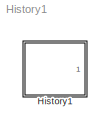
MODEL History1
KIND model
CONFIG AbsTol = auto
CONFIG FixedStep = auto
CONFIG MaxStep = auto
CONFIG MinStep = auto
CONFIG RelTol = 1e-3
CONFIG Solver = ode45
CONFIG SolverMode = Auto
CONFIG StartTime = 0.0
CONFIG StopTime = 10.0
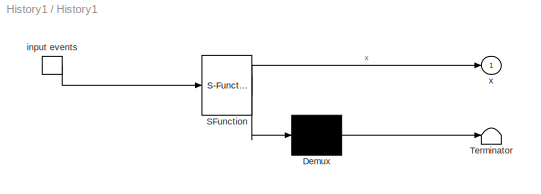
BLOCK [SubSystem] History1
  MaskDescription = Stateflow diagram
  MaskDisplay = plot(sf('Private','sfblk','xIcon'),sf('Private','sfblk','yIcon'));text(0.5,0,sf('Private', 'sfblk', 'tIcon'),'HorizontalAl','Center','VerticalAl','Bottom');
  MaskIconFrame = off
  MaskIconOpaque = off
  MaskIconRotate = none
  MaskIconUnits = autoscale
  MaskSelfModifiable = on
  MaskType = Stateflow
  Ports = [0, 1, 0, 1]
  TreatAsAtomicUnit = off
BLOCK [Demux] History1/ Demux 
  Outputs = 1
  Ports = [1, 1]
BLOCK [S-Function] History1/ SFunction 
  FunctionName = sf_sfun
  PortCounts = [1 2]
  Ports = [1, 2]
  Tag = Stateflow S-Function History1 1
BLOCK [Terminator] History1/ Terminator 
BLOCK [TriggerPort] History1/ input events 
  Ports = [0, 1]
  ShowOutputPort = on
  TriggerType = either
BLOCK [Outport] History1/x
LINE History1/ Demux :1 -> History1/ Terminator :1
LINE History1/ SFunction :1 -> History1/ Demux :1
LINE History1/ SFunction :2 -> History1/x:1
LINE History1/ input events :1 -> History1/ SFunction :1
CHART History1 states=6 transitions=9
  STATE_LABEL 'A'
  STATE_LABEL 'A1/\\nen: x+=1;\\nex: x-=1;'
  STATE_LABEL 'A2/\\nen: x+=10;\\nex: x-=10;'
  STATE_LABEL 'B'
  STATE_LABEL 'B1/\\nen: x+=100;\\nex: x-=100;'
  STATE_LABEL 'B2/\\nen: x+=1000;\\nex: x-=1000;'
